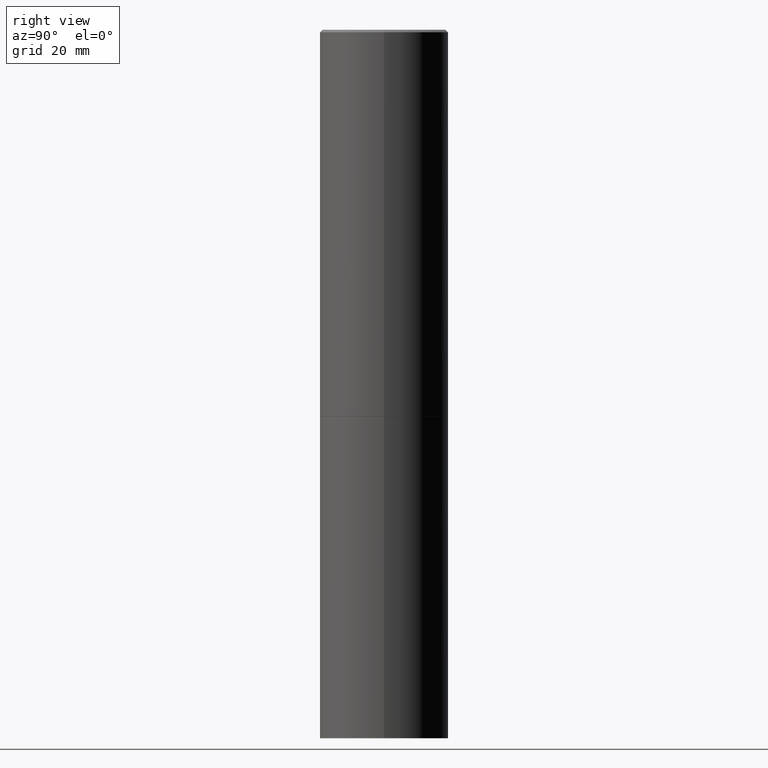
[diagram: clean part render]
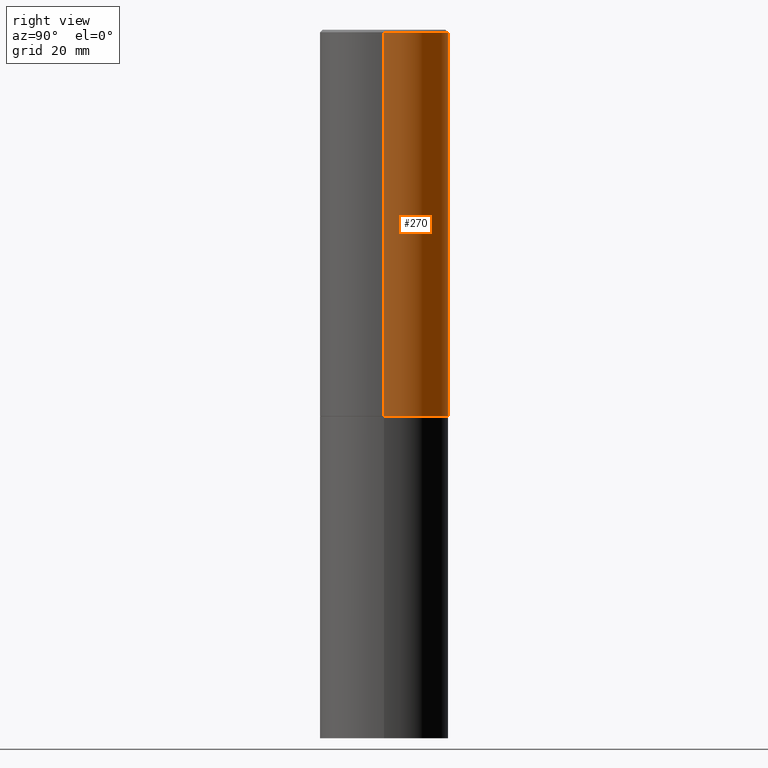
[diagram: same view with one face highlighted and labeled with its STEP entity id]
A machine part, right view. The second image highlights one B-rep face of the part: STEP entity #270.
In plain terms, the highlighted cylindrical surface (partial cylindrical patch) has radius 12.7 mm, axis along (-0, 0, 1).
Its self-contained STEP definition (entity closure, byte-faithful):
#9 = DIRECTION ( 'NONE',  ( 1.000000000000000000, -6.982962677686267499E-15, 4.876176775795936353E-29 ) ) ;
#30 = CARTESIAN_POINT ( 'NONE',  ( -0.5000000000000000000, -1.717677402183226998E-15, -2.999000000000000554 ) ) ;
#68 = VERTEX_POINT ( 'NONE', #30 ) ;
#85 = AXIS2_PLACEMENT_3D ( 'NONE', #113, #257, #218 ) ;
#89 = EDGE_CURVE ( 'NONE', #361, #68, #148, .T. ) ;
#91 = CYLINDRICAL_SURFACE ( 'NONE', #178, 0.4999999999999998335 ) ;
#106 = ORIENTED_EDGE ( 'NONE', *, *, #127, .T. ) ;
#113 = CARTESIAN_POINT ( 'NONE',  ( 7.333960949749226429E-29, -1.047095253519059492E-14, -2.999000000000000554 ) ) ;
#123 = LINE ( 'NONE', #284, #251 ) ;
#127 = EDGE_CURVE ( 'NONE', #68, #358, #320, .T. ) ;
#148 = CIRCLE ( 'NONE', #85, 0.5000000000000000000 ) ;
#152 = CARTESIAN_POINT ( 'NONE',  ( 0.000000000000000000, 0.000000000000000000, 0.000000000000000000 ) ) ;
#154 = FACE_OUTER_BOUND ( 'NONE', #354, .T. ) ;
#171 = EDGE_CURVE ( 'NONE', #361, #299, #123, .T. ) ;
#178 = AXIS2_PLACEMENT_3D ( 'NONE', #152, #205, #9 ) ;
#190 = CARTESIAN_POINT ( 'NONE',  ( -0.4999999999999997224, 3.421651712066268085E-15, -0.02000000000000012879 ) ) ;
#205 = DIRECTION ( 'NONE',  ( -2.445468806185136597E-29, 3.491481338843145583E-15, 1.000000000000000000 ) ) ;
#210 = CARTESIAN_POINT ( 'NONE',  ( 0.4999999999999997224, -3.500078625662627502E-15, -0.02000000000000012879 ) ) ;
#212 = ORIENTED_EDGE ( 'NONE', *, *, #89, .T. ) ;
#217 = ORIENTED_EDGE ( 'NONE', *, *, #240, .F. ) ;
#218 = DIRECTION ( 'NONE',  ( 1.000000000000000000, -6.982962677686266711E-15, 0.000000000000000000 ) ) ;
#222 = DIRECTION ( 'NONE',  ( -2.445468806185136877E-29, 3.491481338843145188E-15, 1.000000000000000000 ) ) ;
#228 = DIRECTION ( 'NONE',  ( -2.445468806185136877E-29, 3.491481338843145188E-15, 1.000000000000000000 ) ) ;
#231 = VECTOR ( 'NONE', #222, 39.37007874015748143 ) ;
#240 = EDGE_CURVE ( 'NONE', #299, #358, #345, .T. ) ;
#246 = CARTESIAN_POINT ( 'NONE',  ( 0.5000000000000000000, -1.396243387403372828E-14, -2.999000000000000554 ) ) ;
#251 = VECTOR ( 'NONE', #228, 39.37007874015748143 ) ;
#252 = CARTESIAN_POINT ( 'NONE',  ( -0.4999999999999998335, 3.552713678800499746E-15, -2.459467545127452330E-29 ) ) ;
#257 = DIRECTION ( 'NONE',  ( -2.445468806185136597E-29, 3.491481338843145583E-15, 1.000000000000000000 ) ) ;
#261 = CARTESIAN_POINT ( 'NONE',  ( 4.890937612370304688E-31, -6.982962677686335982E-17, -0.02000000000000012879 ) ) ;
#270 = ADVANCED_FACE ( 'NONE', ( #154 ), #91, .T. ) ;
#274 = ORIENTED_EDGE ( 'NONE', *, *, #171, .F. ) ;
#284 = CARTESIAN_POINT ( 'NONE',  ( 0.4999999999999998335, -3.491481338843132566E-15, 2.438088387897967336E-29 ) ) ;
#299 = VERTEX_POINT ( 'NONE', #210 ) ;
#320 = LINE ( 'NONE', #252, #231 ) ;
#324 = AXIS2_PLACEMENT_3D ( 'NONE', #261, #355, #351 ) ;
#345 = CIRCLE ( 'NONE', #324, 0.4999999999999997224 ) ;
#351 = DIRECTION ( 'NONE',  ( 1.000000000000000000, -6.982962677686266711E-15, 0.000000000000000000 ) ) ;
#354 = EDGE_LOOP ( 'NONE', ( #212, #106, #217, #274 ) ) ;
#355 = DIRECTION ( 'NONE',  ( -2.445468806185136597E-29, 3.491481338843145583E-15, 1.000000000000000000 ) ) ;
#358 = VERTEX_POINT ( 'NONE', #190 ) ;
#361 = VERTEX_POINT ( 'NONE', #246 ) ;